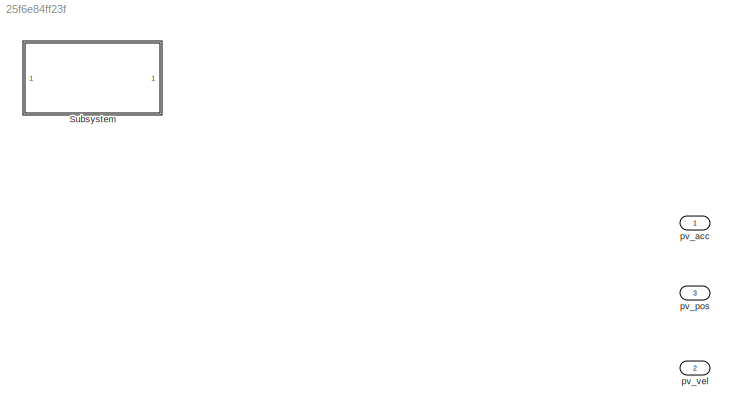
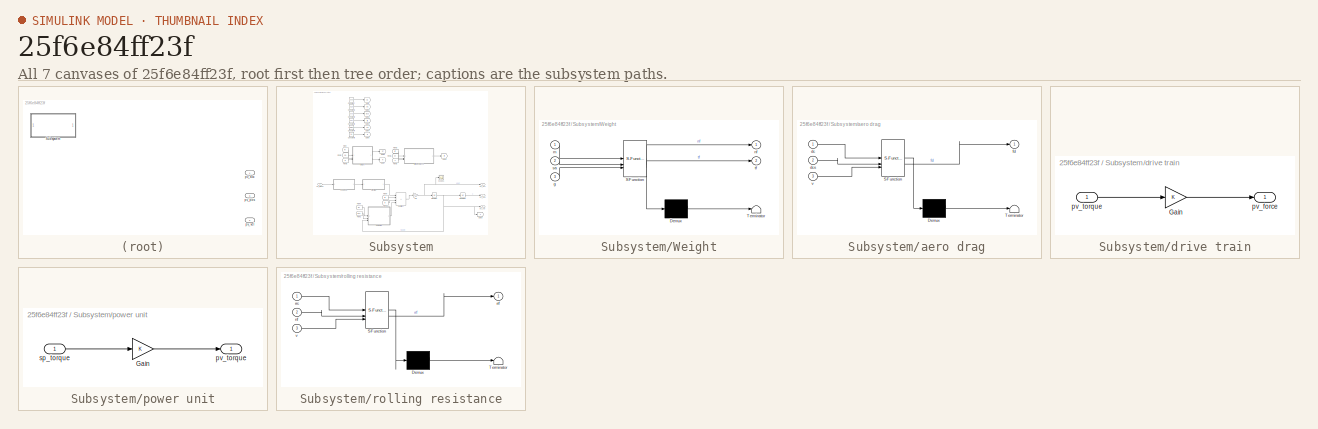
[diagram: thumbnail index - all 7 canvases of the model, root first then tree order]
MODEL slx_25f6e84ff23f
KIND model
CONFIG AbsTol = auto
CONFIG EnableMultiTasking = off
CONFIG FixedStep = 1e-2
CONFIG MaxStep = auto
CONFIG MinStep = auto
CONFIG RelTol = 1e-3
CONFIG SampleTimeConstraint = Unconstrained
CONFIG SolverName = ode4
CONFIG StartTime = 0.0
CONFIG StopTime = 10.0
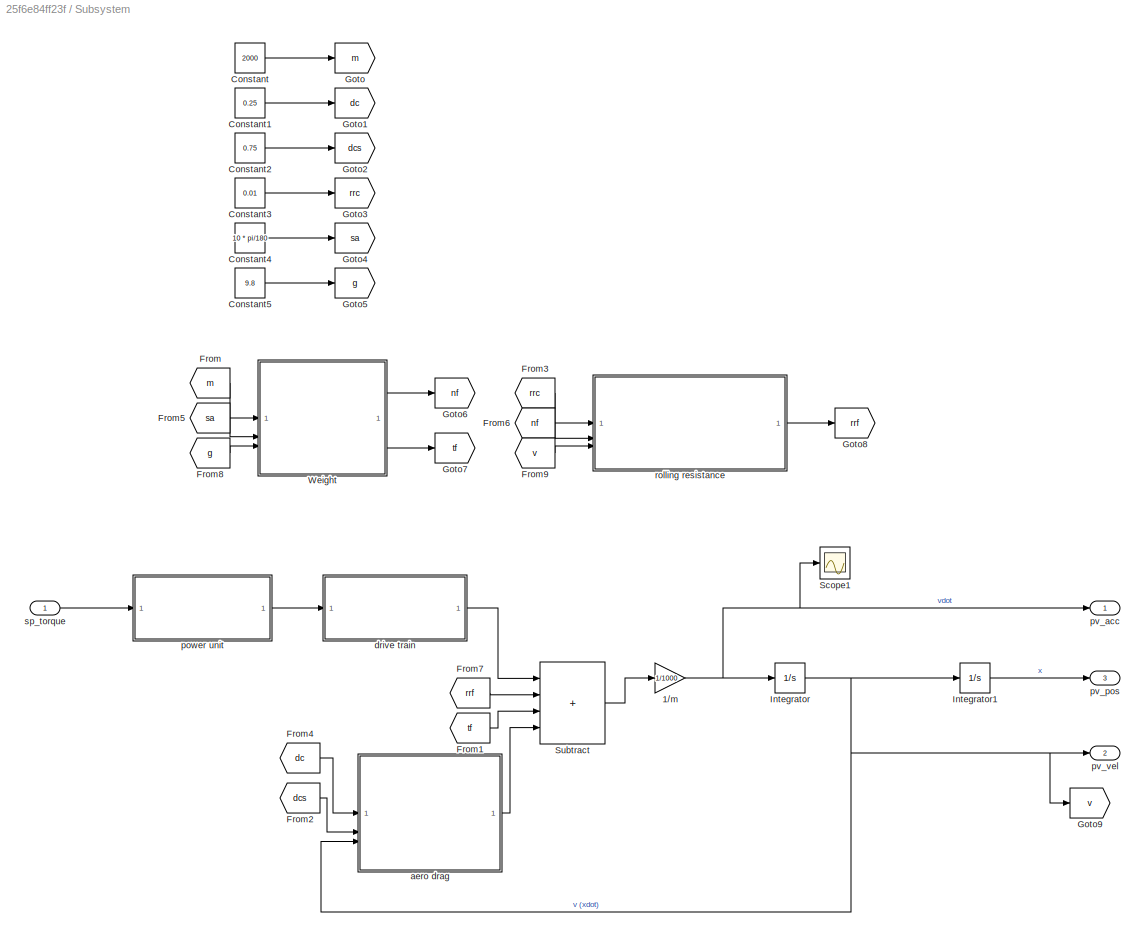
BLOCK [SubSystem] Subsystem
BLOCK [Gain] Subsystem/1//m
  Gain = 1/1000
BLOCK [Constant] Subsystem/Constant
  Value = 2000
BLOCK [Constant] Subsystem/Constant1
  Value = 0.25
BLOCK [Constant] Subsystem/Constant2
  Value = 0.75
BLOCK [Constant] Subsystem/Constant3
  Value = 0.01
BLOCK [Constant] Subsystem/Constant4
  Value = 10 * pi/180
BLOCK [Constant] Subsystem/Constant5
  Value = 9.8
BLOCK [From] Subsystem/From
  GotoTag = m
BLOCK [From] Subsystem/From1
  GotoTag = tf
BLOCK [From] Subsystem/From2
  GotoTag = dcs
BLOCK [From] Subsystem/From3
  GotoTag = rrc
BLOCK [From] Subsystem/From4
  GotoTag = dc
BLOCK [From] Subsystem/From5
  GotoTag = sa
BLOCK [From] Subsystem/From6
  GotoTag = nf
BLOCK [From] Subsystem/From7
  GotoTag = rrf
BLOCK [From] Subsystem/From8
  GotoTag = g
BLOCK [From] Subsystem/From9
  GotoTag = v
BLOCK [Goto] Subsystem/Goto
  GotoTag = m
BLOCK [Goto] Subsystem/Goto1
  GotoTag = dc
BLOCK [Goto] Subsystem/Goto2
  GotoTag = dcs
BLOCK [Goto] Subsystem/Goto3
  GotoTag = rrc
BLOCK [Goto] Subsystem/Goto4
  GotoTag = sa
  NameLocation = right
BLOCK [Goto] Subsystem/Goto5
  GotoTag = g
BLOCK [Goto] Subsystem/Goto6
  GotoTag = nf
BLOCK [Goto] Subsystem/Goto7
  GotoTag = tf
BLOCK [Goto] Subsystem/Goto8
  GotoTag = rrf
BLOCK [Goto] Subsystem/Goto9
  GotoTag = v
BLOCK [Integrator] Subsystem/Integrator
BLOCK [Integrator] Subsystem/Integrator1
BLOCK [Scope] Subsystem/Scope1
  Floating = off
  NumInputPorts = 1
  ScopeSpecificationString = Simulink.scopes.TimeScopeBlockCfg('CurrentConfiguration', extmgr.ConfigurationSet(extmgr.Configuration('Core','General UI',true),extmgr.Configuration('Core','Source UI',true),extmgr.Configuration('Sources','WiredSimulink',true,'DataLoggingVariableName','ScopeData1'),extmgr.Configuration('Visuals','Time Domain',true,'SerializedDisplays',{struct('MinYLimReal','-0.01645','MaxYLimReal','0.27571','YLab...<+1363ch>
BLOCK [Sum] Subsystem/Subtract
  IconShape = rectangular
  Inputs = ++++
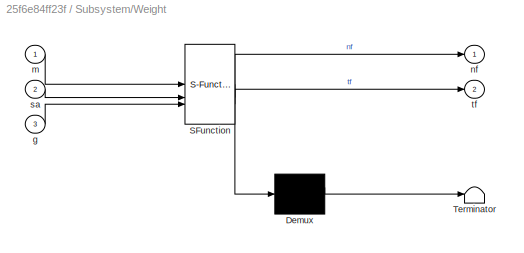
BLOCK [SubSystem] Subsystem/Weight
  ErrorFcn = Stateflow.Translate.translate
  PermitHierarchicalResolution = ExplicitOnly
  SFBlockType = MATLAB Function
  TreatAsAtomicUnit = on
BLOCK [Demux] Subsystem/Weight/ Demux 
  Outputs = 1
BLOCK [S-Function] Subsystem/Weight/ SFunction 
  EnableBusSupport = on
  FunctionName = sf_sfun
  PortCounts = [3 3]
  SFcnIsStateOwnerBlock = off
  SFunctionDeploymentMode = off
  Tag = Stateflow S-Function 3
BLOCK [Terminator] Subsystem/Weight/ Terminator 
BLOCK [Inport] Subsystem/Weight/g
  Port = 3
BLOCK [Inport] Subsystem/Weight/m
BLOCK [Outport] Subsystem/Weight/nf
BLOCK [Inport] Subsystem/Weight/sa
  Port = 2
BLOCK [Outport] Subsystem/Weight/tf
  Port = 2
BLOCK [SubSystem] Subsystem/aero drag
  ErrorFcn = Stateflow.Translate.translate
  PermitHierarchicalResolution = ExplicitOnly
  SFBlockType = MATLAB Function
  TreatAsAtomicUnit = on
BLOCK [Demux] Subsystem/aero drag/ Demux 
  Outputs = 1
BLOCK [S-Function] Subsystem/aero drag/ SFunction 
  EnableBusSupport = on
  FunctionName = sf_sfun
  PortCounts = [3 2]
  SFcnIsStateOwnerBlock = off
  SFunctionDeploymentMode = off
  Tag = Stateflow S-Function 2
BLOCK [Terminator] Subsystem/aero drag/ Terminator 
BLOCK [Inport] Subsystem/aero drag/dc
BLOCK [Inport] Subsystem/aero drag/dcs
  Port = 2
BLOCK [Outport] Subsystem/aero drag/fd
BLOCK [Inport] Subsystem/aero drag/v
  Port = 3
BLOCK [SubSystem] Subsystem/drive train
BLOCK [Gain] Subsystem/drive train/Gain
BLOCK [Outport] Subsystem/drive train/pv_force
BLOCK [Inport] Subsystem/drive train/pv_torque
BLOCK [SubSystem] Subsystem/power unit
BLOCK [Gain] Subsystem/power unit/Gain
BLOCK [Outport] Subsystem/power unit/pv_torque
BLOCK [Inport] Subsystem/power unit/sp_torque
BLOCK [Outport] Subsystem/pv_acc
BLOCK [Outport] Subsystem/pv_pos
  Port = 3
BLOCK [Outport] Subsystem/pv_vel
  Port = 2
BLOCK [SubSystem] Subsystem/rolling resistance
  ErrorFcn = Stateflow.Translate.translate
  PermitHierarchicalResolution = ExplicitOnly
  SFBlockType = MATLAB Function
  TreatAsAtomicUnit = on
BLOCK [Demux] Subsystem/rolling resistance/ Demux 
  Outputs = 1
BLOCK [S-Function] Subsystem/rolling resistance/ SFunction 
  EnableBusSupport = on
  FunctionName = sf_sfun
  PortCounts = [3 2]
  SFcnIsStateOwnerBlock = off
  SFunctionDeploymentMode = off
  Tag = Stateflow S-Function 1
BLOCK [Terminator] Subsystem/rolling resistance/ Terminator 
BLOCK [Inport] Subsystem/rolling resistance/nf
  Port = 2
BLOCK [Inport] Subsystem/rolling resistance/rrc
BLOCK [Outport] Subsystem/rolling resistance/rrf
BLOCK [Inport] Subsystem/rolling resistance/v
  Port = 3
BLOCK [Inport] Subsystem/sp_torque
BLOCK [Outport] pv_acc
BLOCK [Outport] pv_pos
  Port = 3
BLOCK [Outport] pv_vel
  Port = 2
NET Subsystem/1//m:1 -> Subsystem/Integrator:1, Subsystem/Scope1:1, Subsystem/pv_acc:1
LINE Subsystem/Constant1:1 -> Subsystem/Goto1:1
LINE Subsystem/Constant2:1 -> Subsystem/Goto2:1
LINE Subsystem/Constant3:1 -> Subsystem/Goto3:1
LINE Subsystem/Constant4:1 -> Subsystem/Goto4:1
LINE Subsystem/Constant5:1 -> Subsystem/Goto5:1
LINE Subsystem/Constant:1 -> Subsystem/Goto:1
LINE Subsystem/From1:1 -> Subsystem/Subtract:3
LINE Subsystem/From2:1 -> Subsystem/aero drag:2
LINE Subsystem/From3:1 -> Subsystem/rolling resistance:1
LINE Subsystem/From4:1 -> Subsystem/aero drag:1
LINE Subsystem/From5:1 -> Subsystem/Weight:2
LINE Subsystem/From6:1 -> Subsystem/rolling resistance:2
LINE Subsystem/From7:1 -> Subsystem/Subtract:2
LINE Subsystem/From8:1 -> Subsystem/Weight:3
LINE Subsystem/From9:1 -> Subsystem/rolling resistance:3
LINE Subsystem/From:1 -> Subsystem/Weight:1
LINE Subsystem/Integrator1:1 -> Subsystem/pv_pos:1
NET Subsystem/Integrator:1 -> Subsystem/Goto9:1, Subsystem/Integrator1:1, Subsystem/aero drag:3, Subsystem/pv_vel:1
LINE Subsystem/Subtract:1 -> Subsystem/1//m:1
LINE Subsystem/Weight:1 -> Subsystem/Goto6:1
LINE Subsystem/Weight:2 -> Subsystem/Goto7:1
LINE Subsystem/aero drag:1 -> Subsystem/Subtract:4
LINE Subsystem/drive train/Gain:1 -> Subsystem/drive train/pv_force:1
LINE Subsystem/drive train/pv_torque:1 -> Subsystem/drive train/Gain:1
LINE Subsystem/drive train:1 -> Subsystem/Subtract:1
LINE Subsystem/power unit/Gain:1 -> Subsystem/power unit/pv_torque:1
LINE Subsystem/power unit/sp_torque:1 -> Subsystem/power unit/Gain:1
LINE Subsystem/power unit:1 -> Subsystem/drive train:1
LINE Subsystem/rolling resistance:1 -> Subsystem/Goto8:1
LINE Subsystem/sp_torque:1 -> Subsystem/power unit:1
note: NET lines group one-source signal fan-out (src -> all destinations, sorted); 1:1 wires keep LINE
CHART Subsystem/rolling resistance states=1 transitions=1
  STATE_LABEL 'eML_blk_kernel()'
  STATE_LABEL 'SCRIPT:\nfunction rrf = rollingResistance(rrc, nf, v)\ntol = 1e-3;\nif abs(v) > tol\n    rrf = rrc * nf * (-1 * sign(v));\nelse\n    rrf = 0;\nend\n'
CHART Subsystem/aero drag states=1 transitions=1
  STATE_LABEL 'eML_blk_kernel()'
  STATE_LABEL 'SCRIPT:\nfunction fd = aeroDrag(dc, dcs, v)\nfd = 0.5 * dc * dcs * v ^ 2 * (-1 * sign(v));\n'
CHART Subsystem/Weight states=1 transitions=1
  STATE_LABEL 'eML_blk_kernel()'
  STATE_LABEL 'SCRIPT:\nfunction [nf, tf] = fcn(m, sa, g)\nnf = m * g * cos(sa);\ntf = -1 * m * g * sin(sa);\n'
CHART  states=0 transitions=0
CHART  states=0 transitions=0
CHART  states=0 transitions=0
